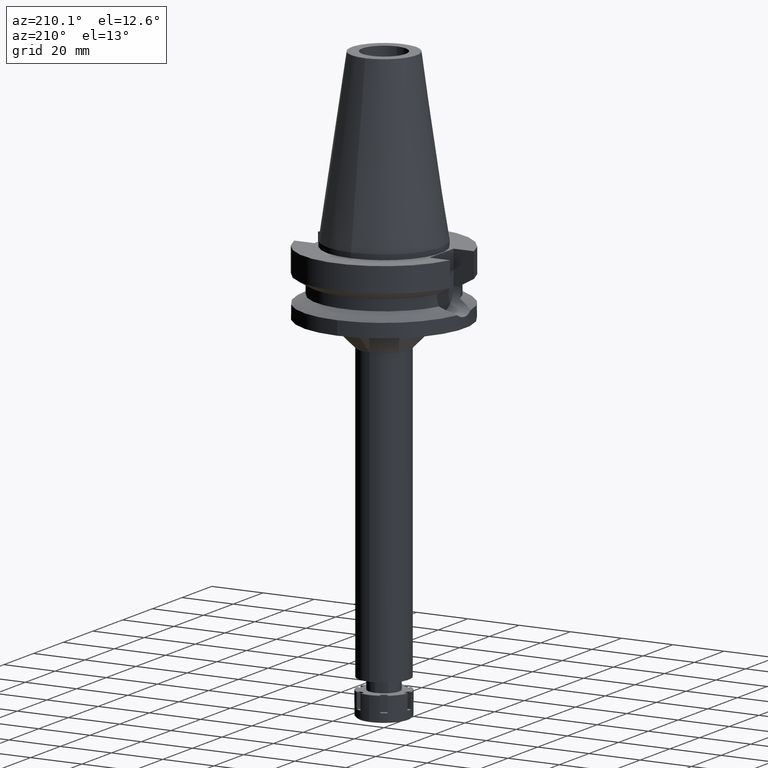
[diagram: clean part render]
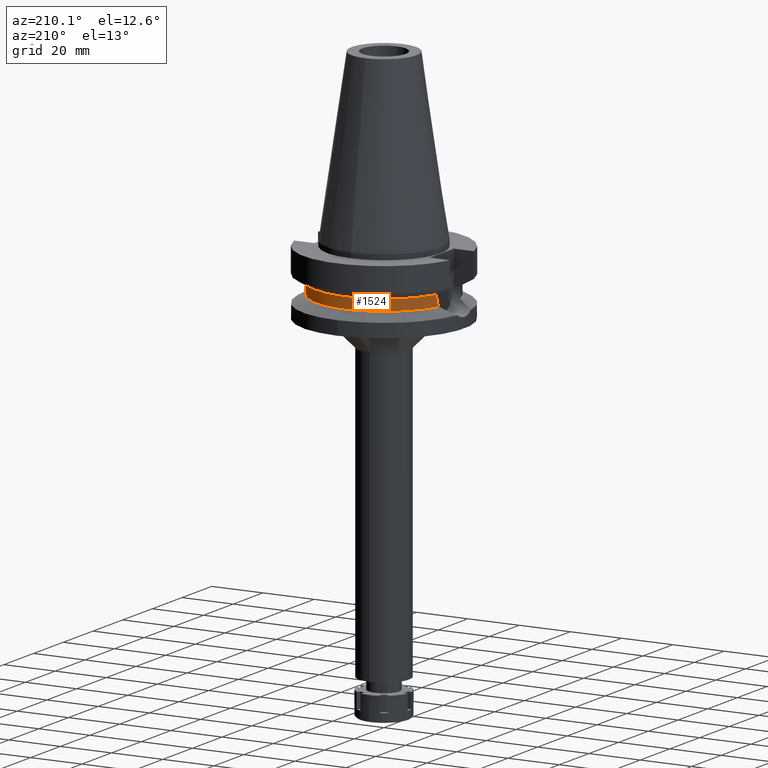
[diagram: same view with one face highlighted and labeled with its STEP entity id]
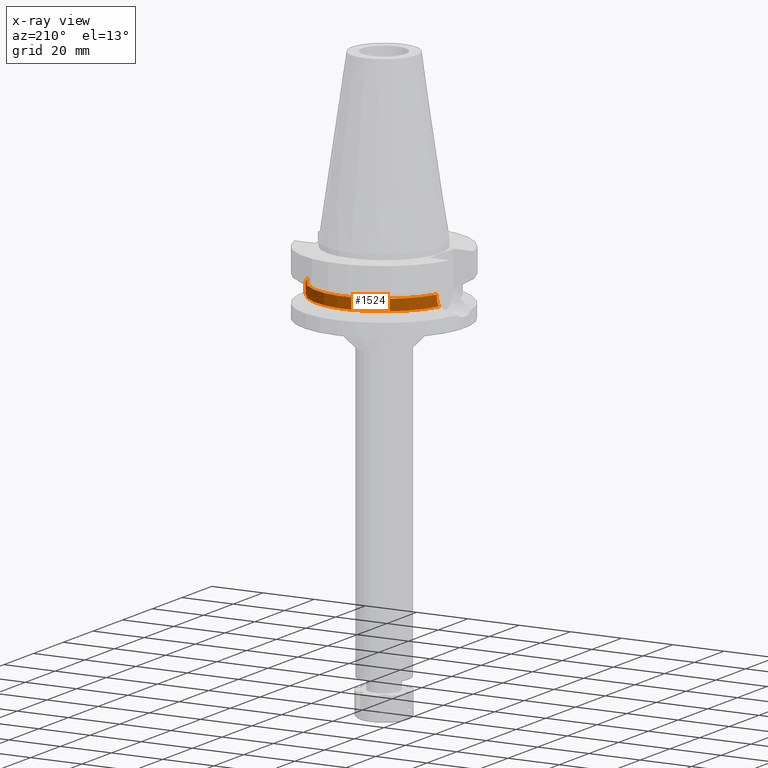
[diagram: x-ray of the same camera — body ghosted, the highlighted face saturated]
A machine part, auxiliary view. The second image highlights one B-rep face of the part: STEP entity #1524.
The next image is the same camera in x-ray: the body ghosted, the highlighted face saturated — about 0% of this face is hidden behind the body in this view.
In plain terms, the highlighted cylindrical surface (partial cylindrical patch) has radius 26.5 mm, axis along (0, 0, -1).
Its self-contained STEP definition (entity closure, byte-faithful):
#64 = CARTESIAN_POINT ( 'NONE',  ( -25.31205759391835741, 7.845621557329967466, -16.75326793494471289 ) ) ;
#154 = ORIENTED_EDGE ( 'NONE', *, *, #589, .F. ) ;
#254 = VERTEX_POINT ( 'NONE', #966 ) ;
#274 = CARTESIAN_POINT ( 'NONE',  ( 25.24772413102000002, 8.049995416383998403, -14.45229202342000008 ) ) ;
#276 = B_SPLINE_CURVE_WITH_KNOTS ( 'NONE', 3,
 ( #2060, #1831, #2955, #2912, #2379, #3186, #2630, #2395, #3202, #653, #1786, #3520, #1845, #1809 ),
 .UNSPECIFIED., .F., .F.,
 ( 4, 2, 2, 1, 1, 2, 2, 4 ),
 ( 0.0000000000000000000, 0.2500000000000158207, 0.3750000000000225930, 0.4375000000000273670, 0.4687500000000284772, 0.4843750000000276446, 0.5000000000000267564, 1.000000000000000000 ),
 .UNSPECIFIED. ) ;
#329 = VERTEX_POINT ( 'NONE', #3131 ) ;
#341 = EDGE_CURVE ( 'NONE', #1842, #329, #2934, .T. ) ;
#369 = EDGE_CURVE ( 'NONE', #1096, #3548, #1213, .T. ) ;
#376 = CARTESIAN_POINT ( 'NONE',  ( -25.25396593744604701, 8.030896968456886498, -15.59377931114939564 ) ) ;
#427 = EDGE_CURVE ( 'NONE', #254, #329, #1640, .T. ) ;
#437 = LINE ( 'NONE', #2441, #1461 ) ;
#558 = DIRECTION ( 'NONE',  ( 2.936344683098950112E-06, -9.209448786821828654E-06, 0.9999999999532819261 ) ) ;
#589 = EDGE_CURVE ( 'NONE', #1096, #254, #437, .T. ) ;
#595 = ORIENTED_EDGE ( 'NONE', *, *, #369, .T. ) ;
#599 = DIRECTION ( 'NONE',  ( 0.0000000000000000000, 1.000000000000000000, 0.0000000000000000000 ) ) ;
#653 = CARTESIAN_POINT ( 'NONE',  ( 25.32550226136657301, 7.802082245156339191, -16.93251888162851770 ) ) ;
#779 = ORIENTED_EDGE ( 'NONE', *, *, #2211, .F. ) ;
#834 = LINE ( 'NONE', #3413, #1139 ) ;
#856 = ORIENTED_EDGE ( 'NONE', *, *, #3201, .F. ) ;
#891 = CARTESIAN_POINT ( 'NONE',  ( -25.30215616128705136, 7.877576232114838817, -16.61085564858937857 ) ) ;
#966 = CARTESIAN_POINT ( 'NONE',  ( -25.24772266958000344, 8.050000000000000711, -14.94999999999999929 ) ) ;
#1096 = VERTEX_POINT ( 'NONE', #2681 ) ;
#1099 = AXIS2_PLACEMENT_3D ( 'NONE', #1148, #3403, #599 ) ;
#1108 = AXIS2_PLACEMENT_3D ( 'NONE', #2616, #1438, #1209 ) ;
#1139 = VECTOR ( 'NONE', #558, 1000.000000000000114 ) ;
#1148 = CARTESIAN_POINT ( 'NONE',  ( 0.0000000000000000000, 0.0000000000000000000, -18.74774300138999905 ) ) ;
#1178 = CARTESIAN_POINT ( 'NONE',  ( -25.32121872273786423, 7.815971166074369592, -16.87703378351192995 ) ) ;
#1209 = DIRECTION ( 'NONE',  ( 0.0000000000000000000, -1.000000000000000000, 0.0000000000000000000 ) ) ;
#1213 = CIRCLE ( 'NONE', #3637, 26.50000000000000711 ) ;
#1438 = DIRECTION ( 'NONE',  ( 0.0000000000000000000, 0.0000000000000000000, -1.000000000000000000 ) ) ;
#1457 = CYLINDRICAL_SURFACE ( 'NONE', #1108, 26.50000000000000000 ) ;
#1460 = CARTESIAN_POINT ( 'NONE',  ( -25.24772266958000344, 8.050000000000000711, -14.94999999999999929 ) ) ;
#1461 = VECTOR ( 'NONE', #3565, 1000.000000000000114 ) ;
#1513 = CARTESIAN_POINT ( 'NONE',  ( 25.53175183775000079, 7.097862220092999941, -18.74774300138999905 ) ) ;
#1524 = ADVANCED_FACE ( 'NONE', ( #3389 ), #1457, .T. ) ;
#1543 = CARTESIAN_POINT ( 'NONE',  ( 0.0000000000000000000, 1.065333950388000029E-14, -14.45225699861000024 ) ) ;
#1586 = EDGE_LOOP ( 'NONE', ( #595, #856, #779, #3198, #2971, #154 ) ) ;
#1640 = B_SPLINE_CURVE_WITH_KNOTS ( 'NONE', 3,
 ( #1460, #1758, #376, #2585, #3208, #2901, #891, #64, #2045, #2027, #1178, #2367, #2885, #3190 ),
 .UNSPECIFIED., .F., .F.,
 ( 4, 2, 2, 1, 1, 2, 2, 4 ),
 ( 0.0000000000000000000, 0.2499999999999946154, 0.3749999999999918399, 0.4374999999999903966, 0.4687499999999898415, 0.4843749999999897304, 0.4999999999999895639, 1.000000000000000000 ),
 .UNSPECIFIED. ) ;
#1758 = CARTESIAN_POINT ( 'NONE',  ( -25.24772266958000344, 8.050000000000022027, -15.27000127552670783 ) ) ;
#1786 = CARTESIAN_POINT ( 'NONE',  ( 25.32419265906722927, 7.806329682139820036, -16.91574545217583392 ) ) ;
#1809 = CARTESIAN_POINT ( 'NONE',  ( 25.24772266958000344, 8.050000000000000711, -14.94999999999999929 ) ) ;
#1831 = CARTESIAN_POINT ( 'NONE',  ( 25.48481820018459132, 7.266687417048629527, -18.43221401829459083 ) ) ;
#1842 = VERTEX_POINT ( 'NONE', #1513 ) ;
#1845 = CARTESIAN_POINT ( 'NONE',  ( 25.24772266957999989, 8.050000000000000711, -15.58999073686770664 ) ) ;
#1972 = CARTESIAN_POINT ( 'NONE',  ( 25.24772266958000344, 8.050000000000000711, -14.94999999999999929 ) ) ;
#2027 = CARTESIAN_POINT ( 'NONE',  ( -25.31954463780458298, 7.821394976198612348, -16.85491936549401970 ) ) ;
#2045 = CARTESIAN_POINT ( 'NONE',  ( -25.31652055493195874, 7.831184758220329556, -16.81426458566284410 ) ) ;
#2060 = CARTESIAN_POINT ( 'NONE',  ( 25.53175183775000079, 7.097862220092999941, -18.74774300138999905 ) ) ;
#2211 = EDGE_CURVE ( 'NONE', #1842, #3182, #276, .T. ) ;
#2367 = CARTESIAN_POINT ( 'NONE',  ( -25.36818304348085817, 7.663708172131605600, -17.48836484279778247 ) ) ;
#2379 = CARTESIAN_POINT ( 'NONE',  ( 25.37572817766058364, 7.637723572221805313, -17.49814693646417751 ) ) ;
#2395 = CARTESIAN_POINT ( 'NONE',  ( 25.33292553852030693, 7.777985707517056646, -17.02558215515331952 ) ) ;
#2441 = CARTESIAN_POINT ( 'NONE',  ( -25.24772216375000156, 8.050001586471001502, -14.45224487658000001 ) ) ;
#2585 = CARTESIAN_POINT ( 'NONE',  ( -25.27269574104415994, 7.971769475022855822, -16.08146184953472257 ) ) ;
#2616 = CARTESIAN_POINT ( 'NONE',  ( 0.0000000000000000000, 2.163583500053999606E-14, 76.67000000000000171 ) ) ;
#2630 = CARTESIAN_POINT ( 'NONE',  ( 25.34387967354898663, 7.742345491372086386, -17.15662736176078695 ) ) ;
#2681 = CARTESIAN_POINT ( 'NONE',  ( -25.24772216375000156, 8.050001586471001502, -14.45224487658000001 ) ) ;
#2885 = CARTESIAN_POINT ( 'NONE',  ( -25.43788636140669368, 7.435506143574321491, -18.11669712823325895 ) ) ;
#2901 = CARTESIAN_POINT ( 'NONE',  ( -25.29454717857530710, 7.902012029789356795, -16.48868902742398745 ) ) ;
#2912 = CARTESIAN_POINT ( 'NONE',  ( 25.39164478449751527, 7.584820969894079390, -17.65194245036779108 ) ) ;
#2934 = CIRCLE ( 'NONE', #1099, 26.50000000000000000 ) ;
#2955 = CARTESIAN_POINT ( 'NONE',  ( 25.44392473217580530, 7.408251102513793818, -18.11706870842442285 ) ) ;
#2971 = ORIENTED_EDGE ( 'NONE', *, *, #427, .F. ) ;
#3131 = CARTESIAN_POINT ( 'NONE',  ( -25.53175183775000079, 7.097862220092999941, -18.74774300138999905 ) ) ;
#3175 = DIRECTION ( 'NONE',  ( -0.9527442516822307583, 0.3037735849057093818, 0.0000000000000000000 ) ) ;
#3182 = VERTEX_POINT ( 'NONE', #1972 ) ;
#3186 = CARTESIAN_POINT ( 'NONE',  ( 25.35411833098890355, 7.708843546315534034, -17.27003765536262136 ) ) ;
#3190 = CARTESIAN_POINT ( 'NONE',  ( -25.53175183775000079, 7.097862220092999941, -18.74774300138999905 ) ) ;
#3198 = ORIENTED_EDGE ( 'NONE', *, *, #341, .T. ) ;
#3201 = EDGE_CURVE ( 'NONE', #3182, #3548, #834, .T. ) ;
#3202 = CARTESIAN_POINT ( 'NONE',  ( 25.32844325893327664, 7.792538688759439225, -16.96970524096579425 ) ) ;
#3208 = CARTESIAN_POINT ( 'NONE',  ( -25.28049982587671707, 7.946985634402524035, -16.24435369772011128 ) ) ;
#3389 = FACE_OUTER_BOUND ( 'NONE', #1586, .T. ) ;
#3403 = DIRECTION ( 'NONE',  ( 0.0000000000000000000, 0.0000000000000000000, 1.000000000000000000 ) ) ;
#3413 = CARTESIAN_POINT ( 'NONE',  ( 25.24772266958000344, 8.050000000000000711, -14.94999999999999929 ) ) ;
#3428 = DIRECTION ( 'NONE',  ( 0.0000000000000000000, 0.0000000000000000000, -1.000000000000000000 ) ) ;
#3520 = CARTESIAN_POINT ( 'NONE',  ( 25.27269246206562414, 7.973290322419562592, -16.24535685341754387 ) ) ;
#3548 = VERTEX_POINT ( 'NONE', #274 ) ;
#3565 = DIRECTION ( 'NONE',  ( -1.016224662221004237E-06, -3.187251312399015996E-06, -0.9999999999944043649 ) ) ;
#3637 = AXIS2_PLACEMENT_3D ( 'NONE', #1543, #3428, #3175 ) ;